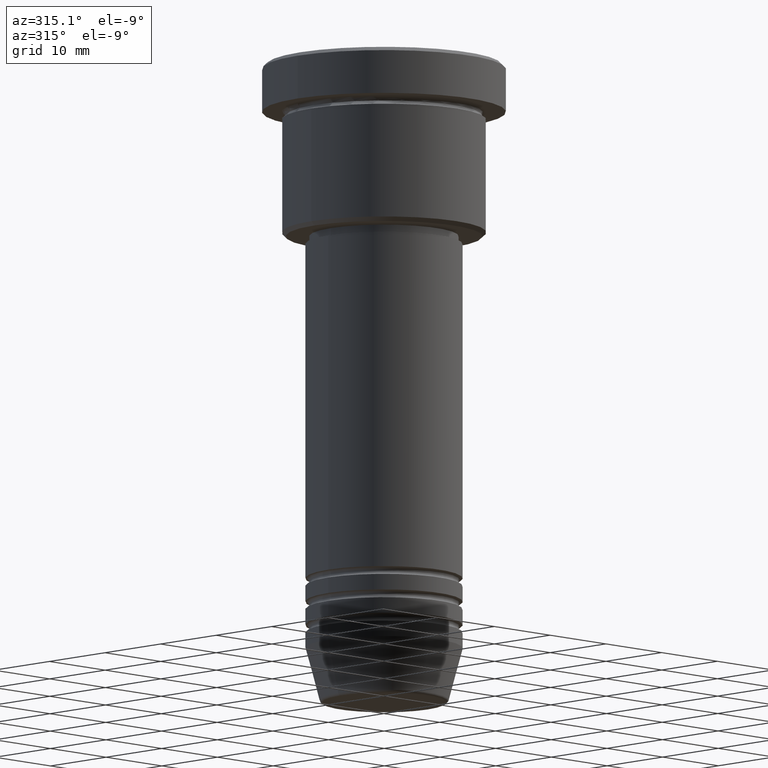
[diagram: clean part render]
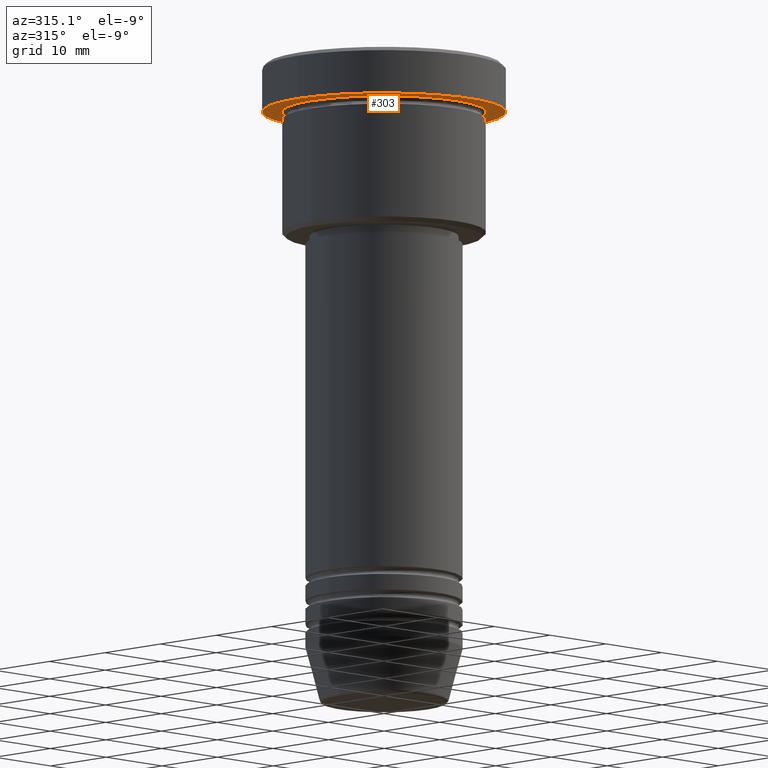
[diagram: same view with one face highlighted and labeled with its STEP entity id]
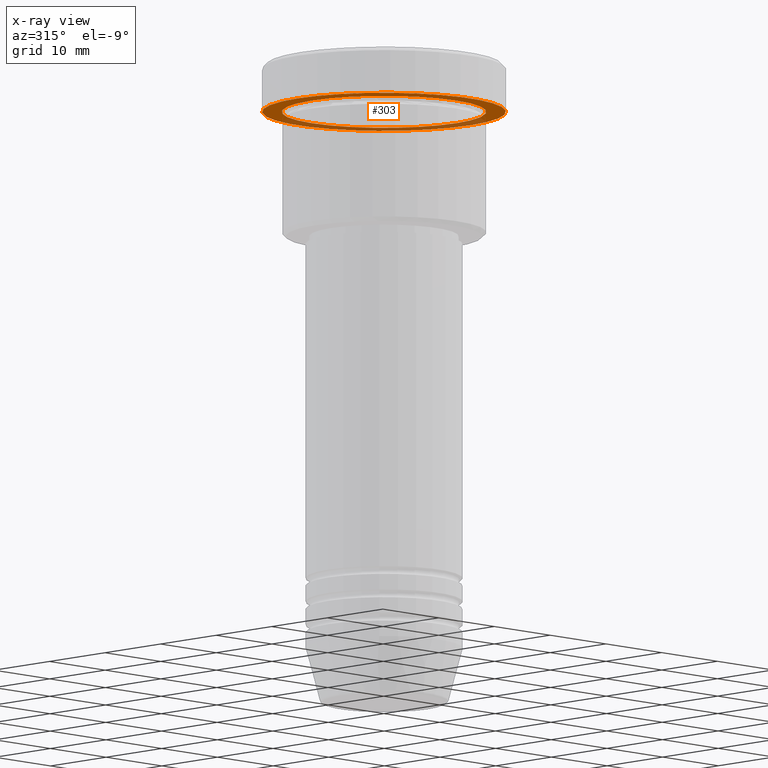
[diagram: x-ray of the same camera — body ghosted, the highlighted face saturated]
A machine part, auxiliary view. The second image highlights one B-rep face of the part: STEP entity #303.
The next image is the same camera in x-ray: the body ghosted, the highlighted face saturated — about 35% of this face is hidden behind the body in this view.
In plain terms, the highlighted planar face has unit normal (0, 0, -1).
Its self-contained STEP definition (entity closure, byte-faithful):
#68 = AXIS2_PLACEMENT_3D ( 'NONE', #773, #1066, #606 ) ;
#131 = VERTEX_POINT ( 'NONE', #736 ) ;
#148 = DIRECTION ( 'NONE',  ( -1.000000000000000000, 0.000000000000000000, 0.000000000000000000 ) ) ;
#156 = DIRECTION ( 'NONE',  ( 0.000000000000000000, 0.000000000000000000, -1.000000000000000000 ) ) ;
#170 = CARTESIAN_POINT ( 'NONE',  ( 0.000000000000000000, 0.000000000000000000, -5.999999999999995559 ) ) ;
#265 = DIRECTION ( 'NONE',  ( -0.000000000000000000, -0.000000000000000000, 1.000000000000000000 ) ) ;
#290 = ORIENTED_EDGE ( 'NONE', *, *, #795, .T. ) ;
#303 = ADVANCED_FACE ( 'NONE', ( #622, #408 ), #780, .T. ) ;
#317 = CARTESIAN_POINT ( 'NONE',  ( -15.50000000000000000, 1.898202538678397557E-15, -5.999999999999995559 ) ) ;
#321 = EDGE_CURVE ( 'NONE', #903, #131, #1175, .T. ) ;
#330 = AXIS2_PLACEMENT_3D ( 'NONE', #1165, #156, #702 ) ;
#370 = ORIENTED_EDGE ( 'NONE', *, *, #912, .F. ) ;
#406 = AXIS2_PLACEMENT_3D ( 'NONE', #882, #590, #952 ) ;
#408 = FACE_OUTER_BOUND ( 'NONE', #509, .T. ) ;
#449 = EDGE_CURVE ( 'NONE', #609, #658, #750, .T. ) ;
#484 = AXIS2_PLACEMENT_3D ( 'NONE', #786, #265, #894 ) ;
#509 = EDGE_LOOP ( 'NONE', ( #370, #778 ) ) ;
#590 = DIRECTION ( 'NONE',  ( -0.000000000000000000, -0.000000000000000000, 1.000000000000000000 ) ) ;
#606 = DIRECTION ( 'NONE',  ( 1.000000000000000000, 0.000000000000000000, 0.000000000000000000 ) ) ;
#609 = VERTEX_POINT ( 'NONE', #654 ) ;
#622 = FACE_BOUND ( 'NONE', #1142, .T. ) ;
#654 = CARTESIAN_POINT ( 'NONE',  ( -13.00000000000000000, 0.000000000000000000, -5.999999999999994671 ) ) ;
#658 = VERTEX_POINT ( 'NONE', #1112 ) ;
#702 = DIRECTION ( 'NONE',  ( -1.000000000000000000, 0.000000000000000000, -0.000000000000000000 ) ) ;
#736 = CARTESIAN_POINT ( 'NONE',  ( 15.50000000000000000, 0.000000000000000000, -5.999999999999995559 ) ) ;
#750 = CIRCLE ( 'NONE', #866, 13.00000000000000000 ) ;
#751 = ORIENTED_EDGE ( 'NONE', *, *, #449, .T. ) ;
#773 = CARTESIAN_POINT ( 'NONE',  ( 0.000000000000000000, 0.000000000000000000, -5.999999999999995559 ) ) ;
#778 = ORIENTED_EDGE ( 'NONE', *, *, #321, .F. ) ;
#780 = PLANE ( 'NONE',  #330 ) ;
#786 = CARTESIAN_POINT ( 'NONE',  ( 0.000000000000000000, 0.000000000000000000, -5.999999999999995559 ) ) ;
#795 = EDGE_CURVE ( 'NONE', #658, #609, #813, .T. ) ;
#813 = CIRCLE ( 'NONE', #406, 13.00000000000000000 ) ;
#866 = AXIS2_PLACEMENT_3D ( 'NONE', #170, #960, #148 ) ;
#882 = CARTESIAN_POINT ( 'NONE',  ( 0.000000000000000000, 0.000000000000000000, -5.999999999999995559 ) ) ;
#894 = DIRECTION ( 'NONE',  ( 1.000000000000000000, 0.000000000000000000, 0.000000000000000000 ) ) ;
#903 = VERTEX_POINT ( 'NONE', #317 ) ;
#912 = EDGE_CURVE ( 'NONE', #131, #903, #923, .T. ) ;
#923 = CIRCLE ( 'NONE', #484, 15.50000000000000000 ) ;
#952 = DIRECTION ( 'NONE',  ( -1.000000000000000000, 0.000000000000000000, 0.000000000000000000 ) ) ;
#960 = DIRECTION ( 'NONE',  ( -0.000000000000000000, -0.000000000000000000, 1.000000000000000000 ) ) ;
#1066 = DIRECTION ( 'NONE',  ( -0.000000000000000000, -0.000000000000000000, 1.000000000000000000 ) ) ;
#1112 = CARTESIAN_POINT ( 'NONE',  ( 13.00000000000000000, 1.592040838891559095E-15, -5.999999999999994671 ) ) ;
#1142 = EDGE_LOOP ( 'NONE', ( #751, #290 ) ) ;
#1165 = CARTESIAN_POINT ( 'NONE',  ( 0.000000000000000000, 15.50000000000000000, -5.999999999999995559 ) ) ;
#1175 = CIRCLE ( 'NONE', #68, 15.50000000000000000 ) ;